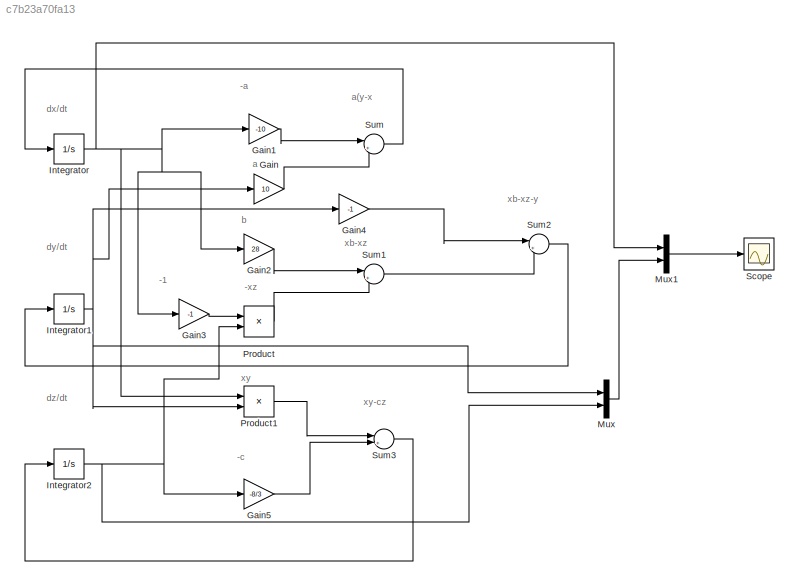
MODEL slx_c7b23a70fa13
KIND model
CONFIG AbsTol = auto
CONFIG EnableMultiTasking = off
CONFIG FixedStep = auto
CONFIG MaxStep = auto
CONFIG MinStep = auto
CONFIG RelTol = 1e-3
CONFIG SampleTimeConstraint = Unconstrained
CONFIG Solver = VariableStepAuto
CONFIG SolverName = VariableStepAuto
CONFIG StartTime = 0.0
CONFIG StopTime = 250
BLOCK [Gain] Gain
  Gain = 10
BLOCK [Gain] Gain1
  Gain = -10
BLOCK [Gain] Gain2
  Gain = 28
BLOCK [Gain] Gain3
  Gain = -1
BLOCK [Gain] Gain4
  Gain = -1
BLOCK [Gain] Gain5
  Gain = -8/3
BLOCK [Integrator] Integrator
  InitialCondition = 1.999
  Ports = [1, 1]
BLOCK [Integrator] Integrator1
  InitialCondition = 2.988
  Ports = [1, 1]
BLOCK [Integrator] Integrator2
  InitialCondition = 8.099
  Ports = [1, 1]
BLOCK [Mux] Mux
  DisplayOption = bar
  Inputs = 2
  Ports = [2, 1]
BLOCK [Mux] Mux1
  DisplayOption = bar
  Inputs = 2
  Ports = [2, 1]
BLOCK [Product] Product
  Ports = [2, 1]
BLOCK [Product] Product1
  Ports = [2, 1]
BLOCK [Scope] Scope
  Floating = off
  NumInputPorts = 1
  Ports = [1]
  ScopeSpecificationString = Simulink.scopes.TimeScopeBlockCfg('CurrentConfiguration', extmgr.ConfigurationSet(extmgr.Configuration('Core','General UI',true),extmgr.Configuration('Core','Source UI',true),extmgr.Configuration('Sources','WiredSimulink',true),extmgr.Configuration('Visuals','Time Domain',true,'SerializedDisplays',{struct('MinYLimReal','-32.91688','MaxYLimReal','54.99437','YLabelReal','','MinYLimMag','0.00000','Ma...<+1443ch>
BLOCK [Sum] Sum
  Inputs = |++
  Ports = [2, 1]
BLOCK [Sum] Sum1
  Inputs = |++
  Ports = [2, 1]
BLOCK [Sum] Sum2
  Inputs = |++
  Ports = [2, 1]
BLOCK [Sum] Sum3
  Inputs = |++
  Ports = [2, 1]
ANNOTATION (root): -1
ANNOTATION (root): -a
ANNOTATION (root): -c
ANNOTATION (root): -xz
ANNOTATION (root): a
ANNOTATION (root): a(y-x
ANNOTATION (root): b
ANNOTATION (root): dx/dt
ANNOTATION (root): dy/dt
ANNOTATION (root): dz/dt
ANNOTATION (root): xb-xz
ANNOTATION (root): xb-xz-y
ANNOTATION (root): xy
ANNOTATION (root): xy-cz
LINE Gain1:1 -> Sum:1
LINE Gain2:1 -> Sum1:1
LINE Gain3:1 -> Product:1
LINE Gain4:1 -> Sum2:1
LINE Gain5:1 -> Sum3:2
LINE Gain:1 -> Sum:2
NET Integrator1:1 -> Gain4:1, Gain:1, Mux:1, Product1:2
NET Integrator2:1 -> Gain5:1, Mux:2, Product:2
NET Integrator:1 -> Gain1:1, Gain2:1, Gain3:1, Mux1:1, Product1:1
LINE Mux1:1 -> Scope:1
LINE Mux:1 -> Mux1:2
LINE Product1:1 -> Sum3:1
LINE Product:1 -> Sum1:2
LINE Sum1:1 -> Sum2:2
LINE Sum2:1 -> Integrator1:1
LINE Sum3:1 -> Integrator2:1
LINE Sum:1 -> Integrator:1
note: NET lines group one-source signal fan-out (src -> all destinations, sorted); 1:1 wires keep LINE
